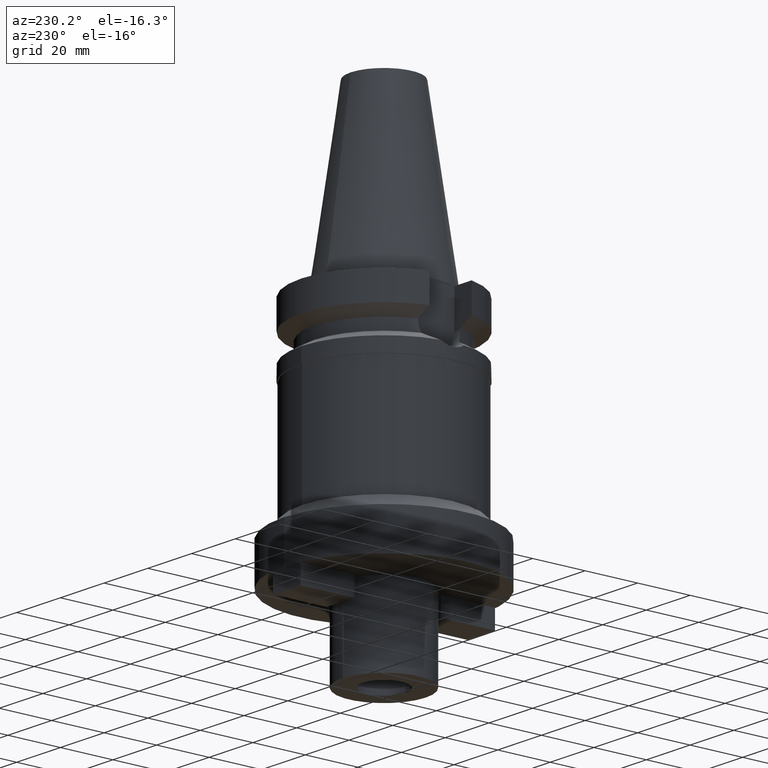
[diagram: clean part render]
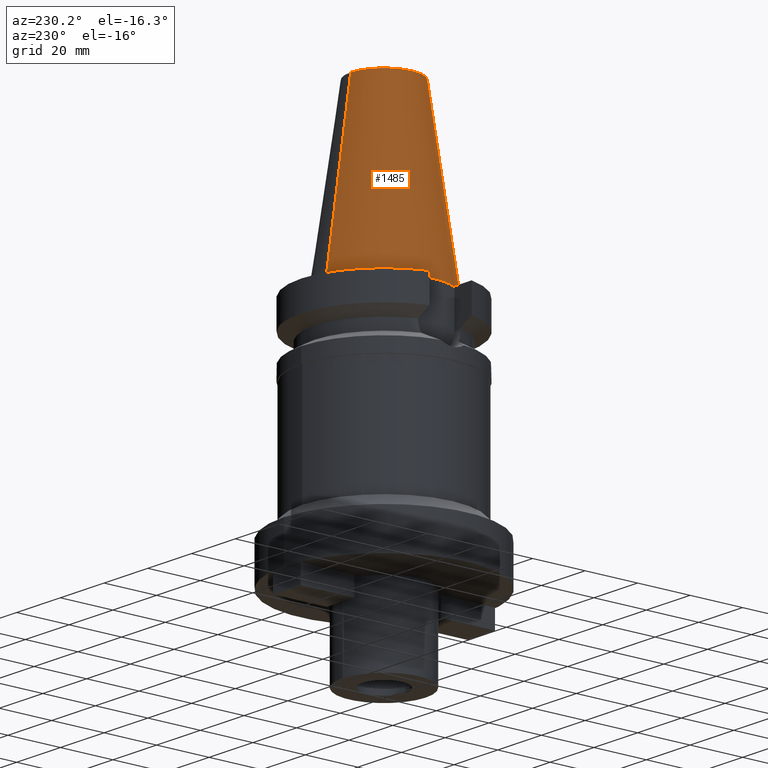
[diagram: same view with one face highlighted and labeled with its STEP entity id]
A machine part, auxiliary view. The second image highlights one B-rep face of the part: STEP entity #1485.
In plain terms, the highlighted conical surface has half-angle 8.297 deg.
Its self-contained STEP definition (entity closure, byte-faithful):
#17=CARTESIAN_POINT('',(0.E0,1.625106302469E-14,6.54E1));
#18=DIRECTION('',(0.E0,0.E0,-1.E0));
#19=DIRECTION('',(0.E0,-1.E0,0.E0));
#20=AXIS2_PLACEMENT_3D('',#17,#18,#19);
#50=DIRECTION('',(0.E0,-1.443043893540E-1,-9.895333461856E-1));
#51=VECTOR('',#50,6.609175956738E1);
#52=CARTESIAN_POINT('',(0.E0,-1.268766899430E1,6.54E1));
#53=LINE('',#52,#51);
#57=CARTESIAN_POINT('',(0.E0,1.625106302469E-14,2.842170943040E-14));
#58=DIRECTION('',(0.E0,0.E0,-1.E0));
#59=DIRECTION('',(0.E0,-1.E0,0.E0));
#60=AXIS2_PLACEMENT_3D('',#57,#58,#59);
#65=DIRECTION('',(0.E0,1.443043893540E-1,-9.895333461856E-1));
#66=VECTOR('',#65,6.609175956738E1);
#67=CARTESIAN_POINT('',(0.E0,1.268766899430E1,6.54E1));
#68=LINE('',#67,#66);
#1252=CARTESIAN_POINT('',(0.E0,-1.268766899430E1,6.54E1));
#1253=CARTESIAN_POINT('',(0.E0,1.268766899430E1,6.54E1));
#1254=VERTEX_POINT('',#1252);
#1255=VERTEX_POINT('',#1253);
#1425=CARTESIAN_POINT('',(0.E0,2.2225E1,6.394884621841E-14));
#1426=VERTEX_POINT('',#1425);
#1427=CARTESIAN_POINT('',(0.E0,-2.2225E1,6.394884621841E-14));
#1428=VERTEX_POINT('',#1427);
#1471=CARTESIAN_POINT('',(0.E0,1.625106302469E-14,3.27E1));
#1472=DIRECTION('',(0.E0,0.E0,-1.E0));
#1473=DIRECTION('',(0.E0,-1.E0,0.E0));
#1474=AXIS2_PLACEMENT_3D('',#1471,#1472,#1473);
#1475=CONICAL_SURFACE('',#1474,1.745633449715E1,8.297E0);
#1477=ORIENTED_EDGE('',*,*,#1476,.F.);
#1478=ORIENTED_EDGE('',*,*,#1458,.F.);
#1480=ORIENTED_EDGE('',*,*,#1479,.T.);
#1482=ORIENTED_EDGE('',*,*,#1481,.T.);
#1483=EDGE_LOOP('',(#1477,#1478,#1480,#1482));
#1484=FACE_OUTER_BOUND('',#1483,.F.);
#21=CIRCLE('',#20,1.268766899430E1);
#61=CIRCLE('',#60,2.2225E1);
#1458=EDGE_CURVE('',#1254,#1255,#21,.T.);
#1476=EDGE_CURVE('',#1255,#1426,#68,.T.);
#1479=EDGE_CURVE('',#1254,#1428,#53,.T.);
#1481=EDGE_CURVE('',#1428,#1426,#61,.T.);
#1485=ADVANCED_FACE('',(#1484),#1475,.T.);